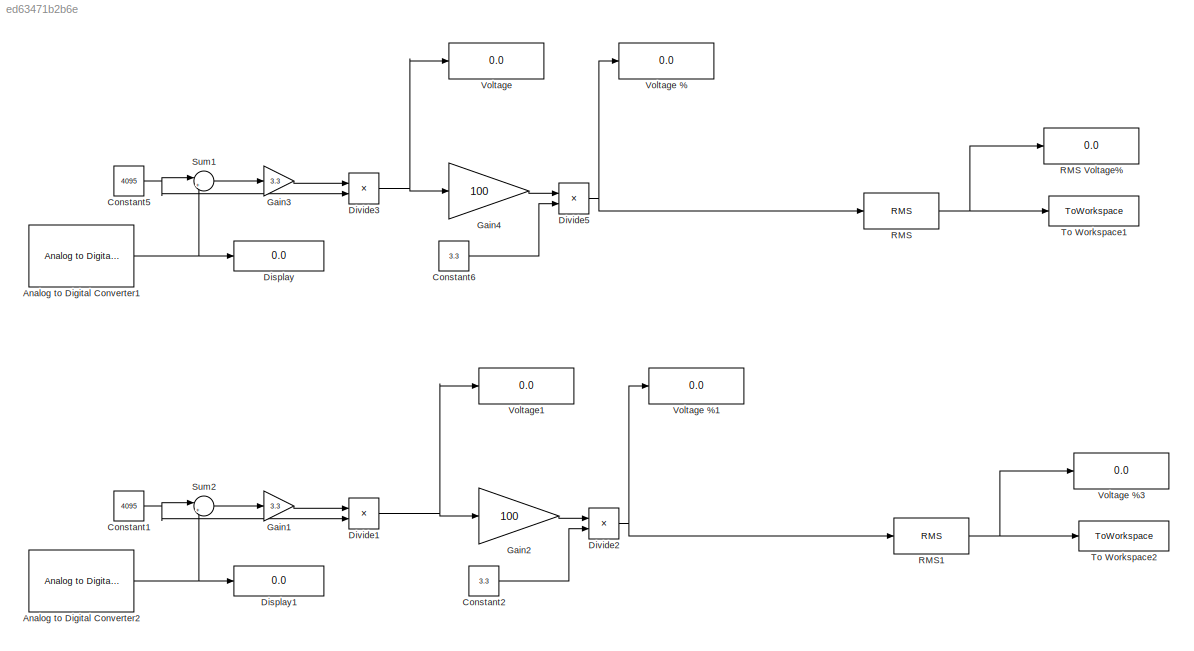
MODEL slx_ed63471b2b6e
KIND model
CONFIG AbsTol = auto
CONFIG EnableMultiTasking = on
CONFIG FixedStep = auto
CONFIG MaxStep = auto
CONFIG MinStep = auto
CONFIG RelTol = 1e-3
CONFIG SampleTimeConstraint = Unconstrained
CONFIG SolverName = FixedStepAuto
CONFIG StartTime = 0.0
CONFIG StopTime = inf
BLOCK [Reference] Analog to Digital Converter1  REF=stm32f4xxblockslib/Analog to Digital Converter
  LibrarySourceBlock = stm32g4xxblockslib/Analog to Digital Converter
  SourceBlock = stm32f4xxblockslib/Analog to Digital Converter
  SourceType = stm32cube.blocks.AnalogInput
BLOCK [Reference] Analog to Digital Converter2  REF=stm32f4xxblockslib/Analog to Digital Converter
  Commented = on
  LibrarySourceBlock = stm32g4xxblockslib/Analog to Digital Converter
  SourceBlock = stm32f4xxblockslib/Analog to Digital Converter
  SourceType = stm32cube.blocks.AnalogInput
BLOCK [Constant] Constant1
  Commented = on
  Value = 4095
BLOCK [Constant] Constant2
  Commented = on
  Value = 3.3
BLOCK [Constant] Constant5
  Value = 4095
BLOCK [Constant] Constant6
  Value = 3.3
BLOCK [Display] Display
  Decimation = 1
BLOCK [Display] Display1
  Commented = on
  Decimation = 1
BLOCK [Product] Divide1
  Commented = on
  Inputs = */
BLOCK [Product] Divide2
  Commented = on
  Inputs = */
BLOCK [Product] Divide3
  Inputs = */
BLOCK [Product] Divide5
  Inputs = */
BLOCK [Gain] Gain1
  Commented = on
  Gain = 3.3
BLOCK [Gain] Gain2
  Commented = on
  Gain = 100
BLOCK [Gain] Gain3
  Gain = 3.3
BLOCK [Gain] Gain4
  Gain = 100
BLOCK [Reference] RMS  REF=dspstat3/RMS
  SourceBlock = dspstat3/RMS
  SourceType = RMS
  UserDataPersistent = on
BLOCK [Display] RMS Voltage%
  Decimation = 1
BLOCK [Reference] RMS1  REF=dspstat3/RMS
  Commented = on
  SourceBlock = dspstat3/RMS
  SourceType = RMS
  UserDataPersistent = on
BLOCK [Sum] Sum1
  Inputs = |+-
BLOCK [Sum] Sum2
  Commented = on
  Inputs = |+-
BLOCK [ToWorkspace] To Workspace1
  FixptAsFi = on
  MaxDataPoints = inf
  SampleTime = -1
  VariableName = data
BLOCK [ToWorkspace] To Workspace2
  Commented = on
  FixptAsFi = on
  MaxDataPoints = inf
  SampleTime = -1
  VariableName = data1
BLOCK [Display] Voltage
  Decimation = 1
BLOCK [Display] Voltage %
  Decimation = 1
BLOCK [Display] Voltage %1
  Commented = on
  Decimation = 1
BLOCK [Display] Voltage %3
  Commented = on
  Decimation = 1
BLOCK [Display] Voltage1
  Commented = on
  Decimation = 1
NET Analog to Digital Converter1:1 -> Display:1, Sum1:2
NET Analog to Digital Converter2:1 -> Display1:1, Sum2:2
NET Constant1:1 -> Divide1:2, Sum2:1
LINE Constant2:1 -> Divide2:2
NET Constant5:1 -> Divide3:2, Sum1:1
LINE Constant6:1 -> Divide5:2
NET Divide1:1 -> Gain2:1, Voltage1:1
NET Divide2:1 -> RMS1:1, Voltage %1:1
NET Divide3:1 -> Gain4:1, Voltage:1
NET Divide5:1 -> RMS:1, Voltage %:1
LINE Gain1:1 -> Divide1:1
LINE Gain2:1 -> Divide2:1
LINE Gain3:1 -> Divide3:1
LINE Gain4:1 -> Divide5:1
NET RMS1:1 -> To Workspace2:1, Voltage %3:1
NET RMS:1 -> RMS Voltage%:1, To Workspace1:1
LINE Sum1:1 -> Gain3:1
LINE Sum2:1 -> Gain1:1
note: NET lines group one-source signal fan-out (src -> all destinations, sorted); 1:1 wires keep LINE
